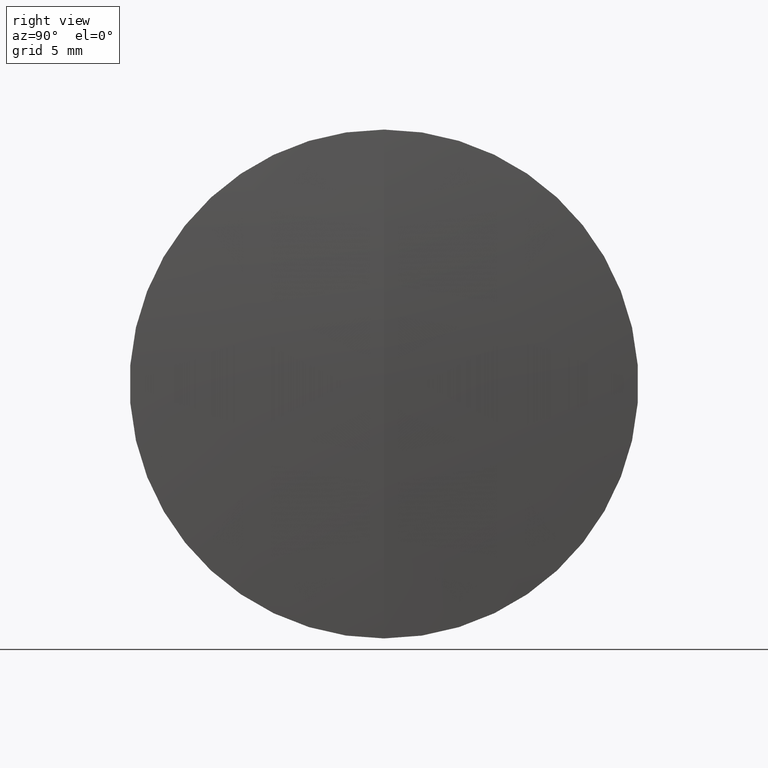
[diagram: clean part render]
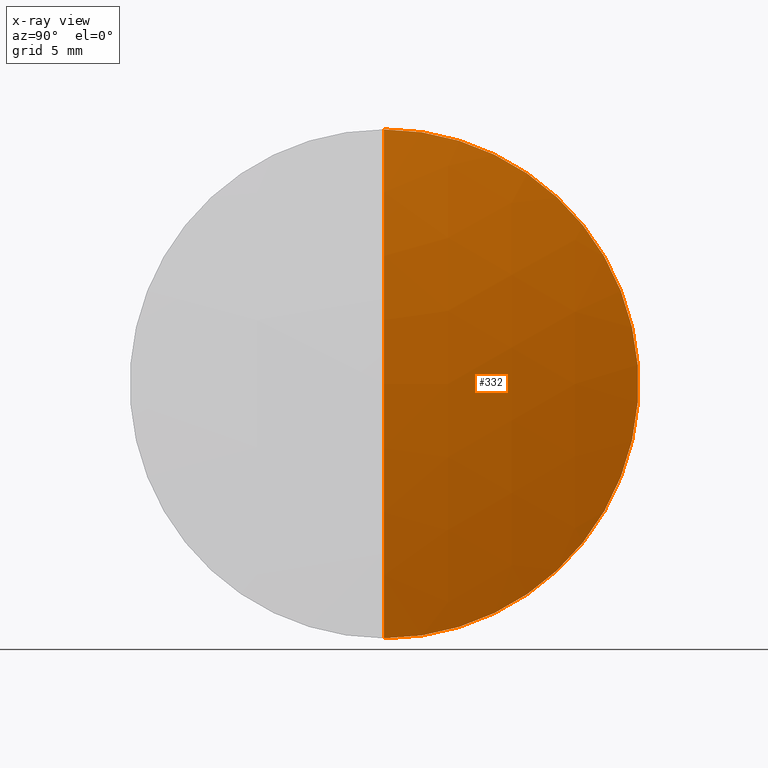
[diagram: x-ray — body ghosted, one internal face saturated and labeled with its STEP entity id]
A machine part, right view, then the same camera in x-ray: the body is ghosted and one INTERNAL B-rep face — a face not visible from any outside direction — is saturated and labeled: STEP entity #332.
In plain terms, the highlighted spherical surface has radius 55.9 mm.
Its self-contained STEP definition (entity closure, byte-faithful):
#6 = ORIENTED_EDGE ( 'NONE', *, *, #24, .F. ) ;
#18 = AXIS2_PLACEMENT_3D ( 'NONE', #101, #88, #173 ) ;
#21 = CARTESIAN_POINT ( 'NONE',  ( 211.0958458084194300, 0.0000000000000000000, -3.185954776904472300E-015 ) ) ;
#24 = EDGE_CURVE ( 'NONE', #108, #163, #144, .T. ) ;
#29 = AXIS2_PLACEMENT_3D ( 'NONE', #96, #193, #37 ) ;
#37 = DIRECTION ( 'NONE',  ( 0.0000000000000000000, 0.0000000000000000000, -1.000000000000000000 ) ) ;
#45 = EDGE_CURVE ( 'NONE', #258, #163, #122, .T. ) ;
#68 = DIRECTION ( 'NONE',  ( 0.0000000000000000000, 0.0000000000000000000, 1.000000000000000000 ) ) ;
#70 = ORIENTED_EDGE ( 'NONE', *, *, #45, .T. ) ;
#71 = EDGE_LOOP ( 'NONE', ( #290, #70, #6 ) ) ;
#78 = DIRECTION ( 'NONE',  ( 0.0000000000000000000, -1.224646799147353200E-016, 1.000000000000000000 ) ) ;
#88 = DIRECTION ( 'NONE',  ( -1.000000000000000000, -0.0000000000000000000, -0.0000000000000000000 ) ) ;
#96 = CARTESIAN_POINT ( 'NONE',  ( 211.0958458084194300, 0.0000000000000000000, -3.185954776904472300E-015 ) ) ;
#101 = CARTESIAN_POINT ( 'NONE',  ( 265.5340676750454300, 0.0000000000000000000, 0.0000000000000000000 ) ) ;
#108 = VERTEX_POINT ( 'NONE', #177 ) ;
#122 = CIRCLE ( 'NONE', #137, 55.90000000000000600 ) ;
#129 = DIRECTION ( 'NONE',  ( 0.0000000000000000000, 1.000000000000000000, 0.0000000000000000000 ) ) ;
#137 = AXIS2_PLACEMENT_3D ( 'NONE', #21, #156, #78 ) ;
#138 = SPHERICAL_SURFACE ( 'NONE', #186, 55.90000000000000600 ) ;
#144 = CIRCLE ( 'NONE', #18, 12.69999999999999600 ) ;
#153 = CIRCLE ( 'NONE', #29, 55.90000000000000600 ) ;
#156 = DIRECTION ( 'NONE',  ( -0.0000000000000000000, 1.000000000000000000, 1.224646799147353200E-016 ) ) ;
#163 = VERTEX_POINT ( 'NONE', #213 ) ;
#173 = DIRECTION ( 'NONE',  ( 0.0000000000000000000, 0.0000000000000000000, 1.000000000000000000 ) ) ;
#177 = CARTESIAN_POINT ( 'NONE',  ( 265.5340676750454300, 0.0000000000000000000, 12.69999999999999600 ) ) ;
#186 = AXIS2_PLACEMENT_3D ( 'NONE', #215, #129, #68 ) ;
#190 = EDGE_CURVE ( 'NONE', #258, #108, #153, .T. ) ;
#193 = DIRECTION ( 'NONE',  ( 0.0000000000000000000, -1.000000000000000000, 0.0000000000000000000 ) ) ;
#201 = CARTESIAN_POINT ( 'NONE',  ( 266.9958458084194000, 0.0000000000000000000, 2.369330267123802000E-016 ) ) ;
#213 = CARTESIAN_POINT ( 'NONE',  ( 265.5340676750454300, 1.555301434917138000E-015, -12.69999999999999600 ) ) ;
#215 = CARTESIAN_POINT ( 'NONE',  ( 211.0958458084194300, 0.0000000000000000000, -3.185954776904472300E-015 ) ) ;
#241 = FACE_OUTER_BOUND ( 'NONE', #71, .T. ) ;
#258 = VERTEX_POINT ( 'NONE', #201 ) ;
#290 = ORIENTED_EDGE ( 'NONE', *, *, #190, .F. ) ;
#332 = ADVANCED_FACE ( 'NONE', ( #241 ), #138, .T. ) ;